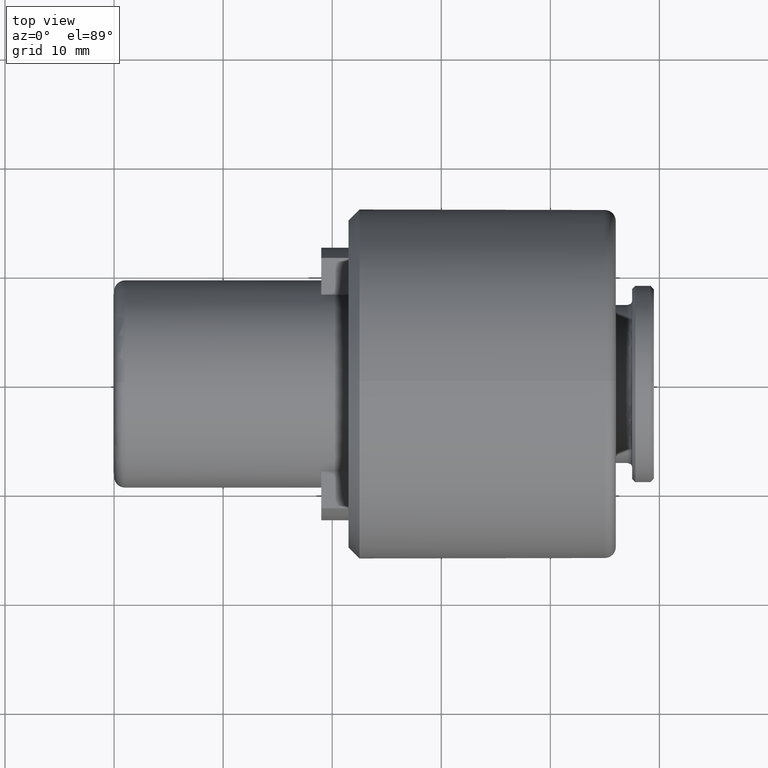
[diagram: clean part render]
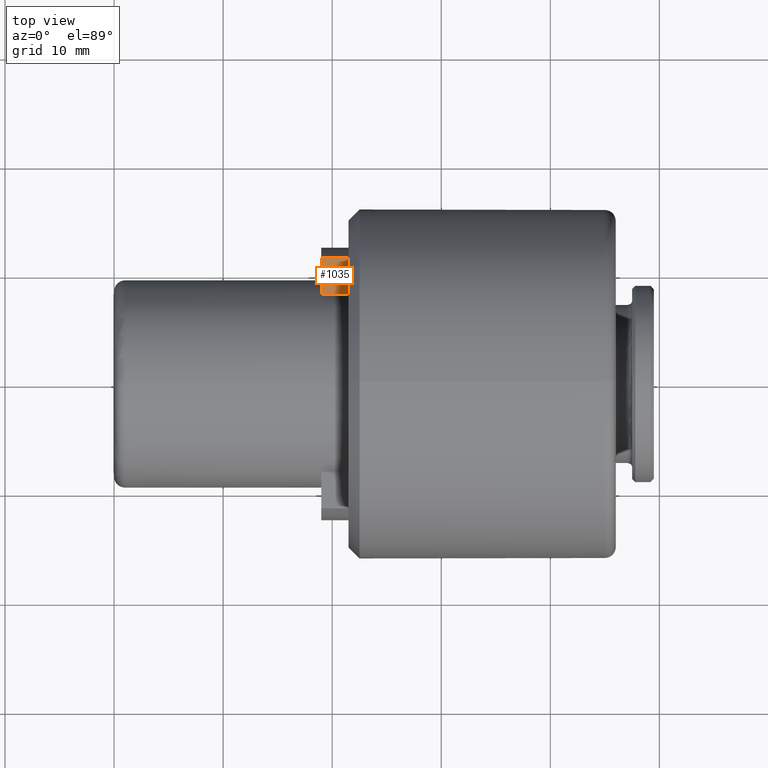
[diagram: same view with one face highlighted and labeled with its STEP entity id]
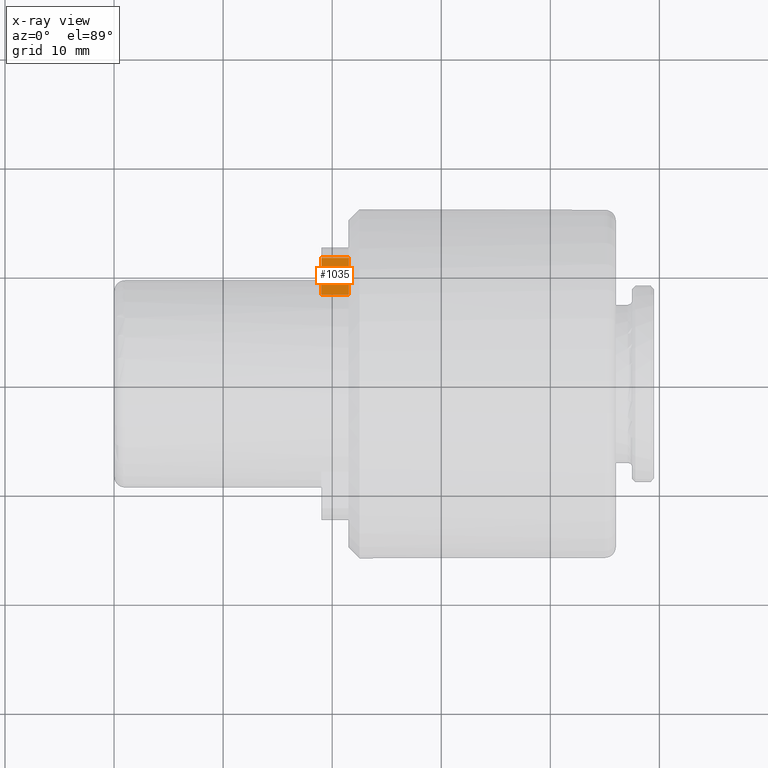
[diagram: x-ray of the same camera — body ghosted, the highlighted face saturated]
A machine part, top view. The second image highlights one B-rep face of the part: STEP entity #1035.
The next image is the same camera in x-ray: the body ghosted, the highlighted face saturated — about 0% of this face is hidden behind the body in this view.
In plain terms, the highlighted planar face has unit normal (-0, 0, 1).
Its self-contained STEP definition (entity closure, byte-faithful):
#51 = CARTESIAN_POINT ( 'NONE',  ( 21.50000000000000000, 0.0000000000000000000, 4.949999992079996900 ) ) ;
#132 = AXIS2_PLACEMENT_3D ( 'NONE', #158, #1219, #179 ) ;
#158 = CARTESIAN_POINT ( 'NONE',  ( 19.00000000000000000, 11.47813138099999900, 4.950000000000000200 ) ) ;
#179 = DIRECTION ( 'NONE',  ( 0.0000000000000000000, -1.000000000000000000, 0.0000000000000000000 ) ) ;
#368 = VERTEX_POINT ( 'NONE', #1178 ) ;
#391 = VECTOR ( 'NONE', #1191, 1000.000000000000000 ) ;
#395 = PLANE ( 'NONE',  #132 ) ;
#404 = VECTOR ( 'NONE', #581, 1000.000000000000000 ) ;
#406 = LINE ( 'NONE', #51, #391 ) ;
#423 = DIRECTION ( 'NONE',  ( 1.000000000000000000, -0.0000000000000000000, -0.0000000000000000000 ) ) ;
#429 = CARTESIAN_POINT ( 'NONE',  ( 21.50000000000000000, 11.47813138271872700, 4.949999996039999000 ) ) ;
#494 = CARTESIAN_POINT ( 'NONE',  ( 20.25000000000000000, 11.47813138099999900, 4.950000000000000200 ) ) ;
#511 = VECTOR ( 'NONE', #423, 1000.000000000000000 ) ;
#527 = ORIENTED_EDGE ( 'NONE', *, *, #1213, .T. ) ;
#551 = ORIENTED_EDGE ( 'NONE', *, *, #1039, .T. ) ;
#569 = LINE ( 'NONE', #1000, #511 ) ;
#576 = VERTEX_POINT ( 'NONE', #1030 ) ;
#581 = DIRECTION ( 'NONE',  ( -1.000000000000000000, -0.0000000000000000000, -0.0000000000000000000 ) ) ;
#590 = EDGE_LOOP ( 'NONE', ( #716, #527, #910, #551 ) ) ;
#642 = VERTEX_POINT ( 'NONE', #1169 ) ;
#716 = ORIENTED_EDGE ( 'NONE', *, *, #1057, .T. ) ;
#787 = VERTEX_POINT ( 'NONE', #429 ) ;
#907 = VECTOR ( 'NONE', #1200, 1000.000000000000000 ) ;
#910 = ORIENTED_EDGE ( 'NONE', *, *, #1106, .T. ) ;
#956 = FACE_OUTER_BOUND ( 'NONE', #590, .T. ) ;
#1000 = CARTESIAN_POINT ( 'NONE',  ( 13.83991106400000100, 8.108483209995304400, 4.950000003355985900 ) ) ;
#1030 = CARTESIAN_POINT ( 'NONE',  ( 19.00000000000000400, 11.47813138101095600, 4.949999999999999300 ) ) ;
#1035 = ADVANCED_FACE ( 'NONE', ( #956 ), #395, .T. ) ;
#1039 = EDGE_CURVE ( 'NONE', #642, #368, #569, .T. ) ;
#1057 = EDGE_CURVE ( 'NONE', #368, #787, #406, .T. ) ;
#1106 = EDGE_CURVE ( 'NONE', #576, #642, #1158, .T. ) ;
#1158 = LINE ( 'NONE', #1167, #907 ) ;
#1167 = CARTESIAN_POINT ( 'NONE',  ( 19.00000000000000000, 9.793307296500000100, 4.950000000000000200 ) ) ;
#1169 = CARTESIAN_POINT ( 'NONE',  ( 18.99999999934733800, 8.108483211019670700, 4.950000001677992100 ) ) ;
#1175 = LINE ( 'NONE', #494, #404 ) ;
#1178 = CARTESIAN_POINT ( 'NONE',  ( 21.50000000000000000, 8.108483213437139600, 4.949999997717991800 ) ) ;
#1191 = DIRECTION ( 'NONE',  ( 0.0000000000000000000, 1.000000000000000000, 0.0000000000000000000 ) ) ;
#1200 = DIRECTION ( 'NONE',  ( 0.0000000000000000000, -1.000000000000000000, 0.0000000000000000000 ) ) ;
#1213 = EDGE_CURVE ( 'NONE', #787, #576, #1175, .T. ) ;
#1219 = DIRECTION ( 'NONE',  ( -0.0000000000000000000, 0.0000000000000000000, 1.000000000000000000 ) ) ;